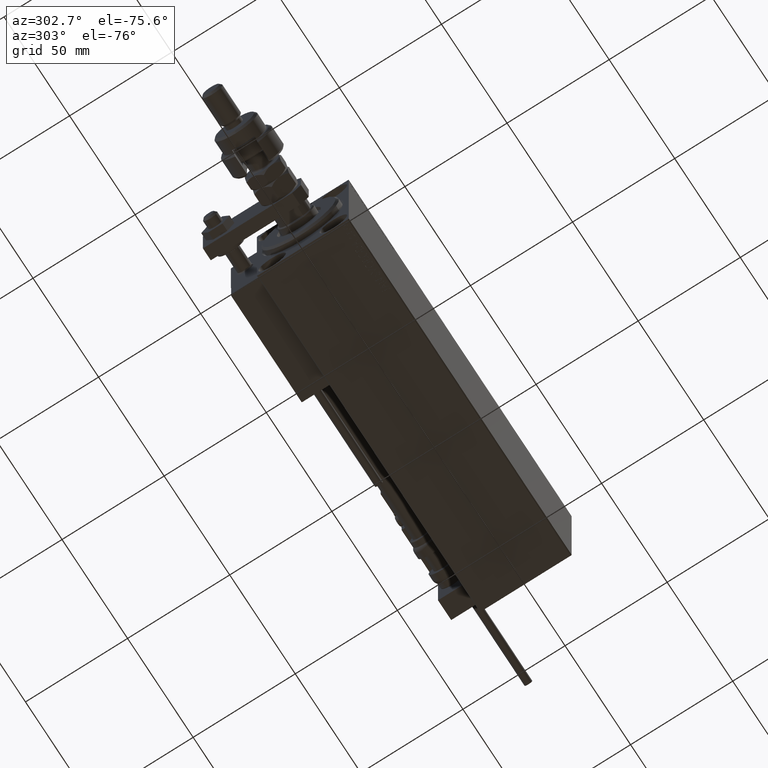
[diagram: clean part render]
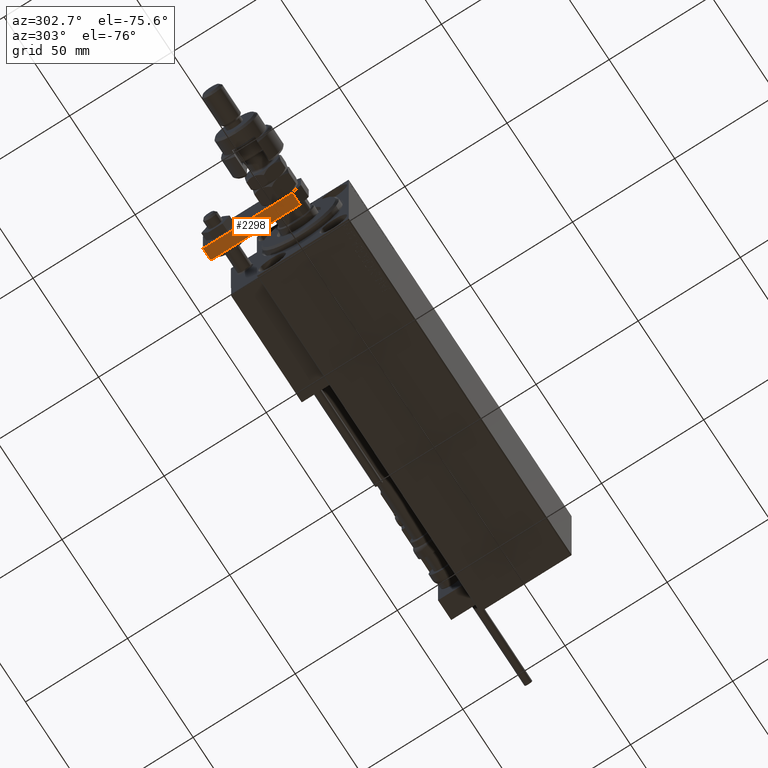
[diagram: same view with one face highlighted and labeled with its STEP entity id]
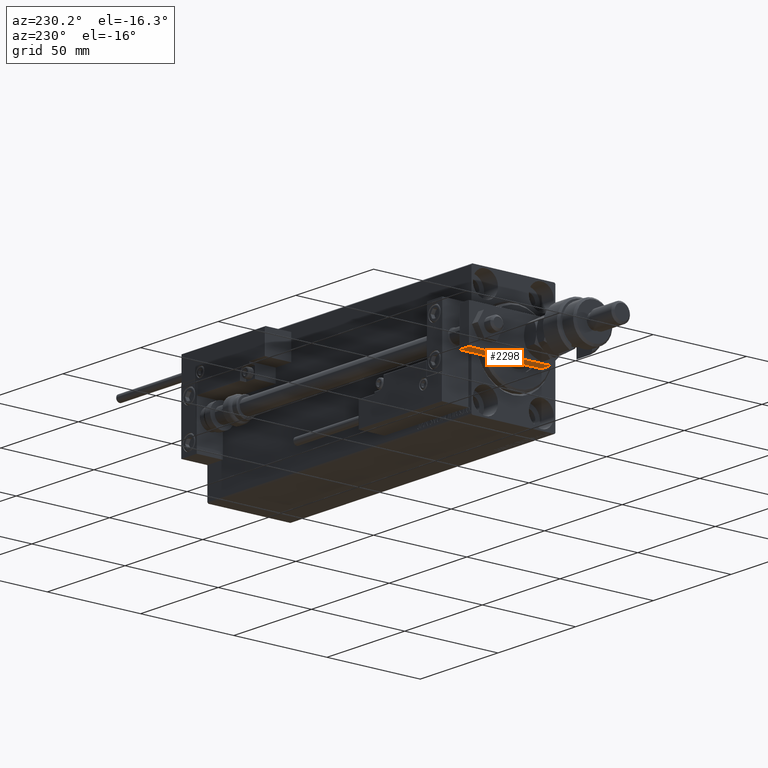
[diagram: same view with one face highlighted and labeled with its STEP entity id]
A machine part, auxiliary view. The second image highlights one B-rep face of the part: STEP entity #2298.
A second angle (auxiliary view) of the same face is appended — the face is thin or edge-on in the first view.
In plain terms, the highlighted planar face has unit normal (0, -0, 1).
Its self-contained STEP definition (entity closure, byte-faithful):
#815 = DIRECTION ( 'NONE',  ( 1.000000000000000000, -1.084202172485504434E-16, 0.000000000000000000 ) ) ;
#2298 = ADVANCED_FACE ( 'NONE', ( #16629 ), #21169, .F. ) ;
#3577 = VECTOR ( 'NONE', #18407, 1000.000000000000000 ) ;
#6131 = CARTESIAN_POINT ( 'NONE',  ( -10.00000000000000000, 48.00000000000000000, 6.000000000000000000 ) ) ;
#7194 = LINE ( 'NONE', #6131, #40004 ) ;
#7447 = EDGE_CURVE ( 'NONE', #34582, #22343, #7194, .T. ) ;
#8067 = CARTESIAN_POINT ( 'NONE',  ( -10.00000000000000000, 48.00000000000000000, 6.000000000000000000 ) ) ;
#9007 = CARTESIAN_POINT ( 'NONE',  ( -10.00000000000000000, 48.00000000000000000, 6.000000000000000000 ) ) ;
#10915 = CARTESIAN_POINT ( 'NONE',  ( -10.00000000000000533, 4.240000000000021529, 6.000000000000000000 ) ) ;
#11061 = EDGE_CURVE ( 'NONE', #22343, #33125, #17724, .T. ) ;
#11089 = ORIENTED_EDGE ( 'NONE', *, *, #11061, .T. ) ;
#11736 = ORIENTED_EDGE ( 'NONE', *, *, #7447, .T. ) ;
#11946 = VECTOR ( 'NONE', #50388, 1000.000000000000000 ) ;
#12018 = DIRECTION ( 'NONE',  ( -1.084202172485504434E-16, -1.000000000000000000, 0.000000000000000000 ) ) ;
#12278 = DIRECTION ( 'NONE',  ( -0.000000000000000000, -0.000000000000000000, -1.000000000000000000 ) ) ;
#16629 = FACE_OUTER_BOUND ( 'NONE', #24177, .T. ) ;
#17000 = ORIENTED_EDGE ( 'NONE', *, *, #29913, .F. ) ;
#17724 = LINE ( 'NONE', #45581, #11946 ) ;
#18407 = DIRECTION ( 'NONE',  ( 0.000000000000000000, 0.000000000000000000, 1.000000000000000000 ) ) ;
#20912 = EDGE_CURVE ( 'NONE', #33125, #47219, #42788, .T. ) ;
#21169 = PLANE ( 'NONE',  #52751 ) ;
#22343 = VERTEX_POINT ( 'NONE', #39603 ) ;
#24175 = DIRECTION ( 'NONE',  ( 1.084202172485504434E-16, 1.000000000000000000, 0.000000000000000000 ) ) ;
#24177 = EDGE_LOOP ( 'NONE', ( #11089, #46377, #17000, #11736 ) ) ;
#24324 = CARTESIAN_POINT ( 'NONE',  ( -10.00000000000000000, 48.00000000000000000, 6.000000000000000000 ) ) ;
#29913 = EDGE_CURVE ( 'NONE', #34582, #47219, #52954, .T. ) ;
#31643 = VECTOR ( 'NONE', #12018, 1000.000000000000000 ) ;
#33125 = VERTEX_POINT ( 'NONE', #34829 ) ;
#34582 = VERTEX_POINT ( 'NONE', #9007 ) ;
#34829 = CARTESIAN_POINT ( 'NONE',  ( -10.00000000000000533, 4.240000000000021529, 0.000000000000000000 ) ) ;
#39603 = CARTESIAN_POINT ( 'NONE',  ( -10.00000000000000000, 48.00000000000000000, 0.000000000000000000 ) ) ;
#40004 = VECTOR ( 'NONE', #12278, 1000.000000000000000 ) ;
#42788 = LINE ( 'NONE', #10915, #3577 ) ;
#45581 = CARTESIAN_POINT ( 'NONE',  ( -10.00000000000000000, 48.00000000000000000, 0.000000000000000000 ) ) ;
#46377 = ORIENTED_EDGE ( 'NONE', *, *, #20912, .T. ) ;
#47219 = VERTEX_POINT ( 'NONE', #48592 ) ;
#48592 = CARTESIAN_POINT ( 'NONE',  ( -10.00000000000000533, 4.240000000000021529, 6.000000000000000000 ) ) ;
#50388 = DIRECTION ( 'NONE',  ( -1.084202172485504434E-16, -1.000000000000000000, 0.000000000000000000 ) ) ;
#52751 = AXIS2_PLACEMENT_3D ( 'NONE', #8067, #815, #24175 ) ;
#52954 = LINE ( 'NONE', #24324, #31643 ) ;